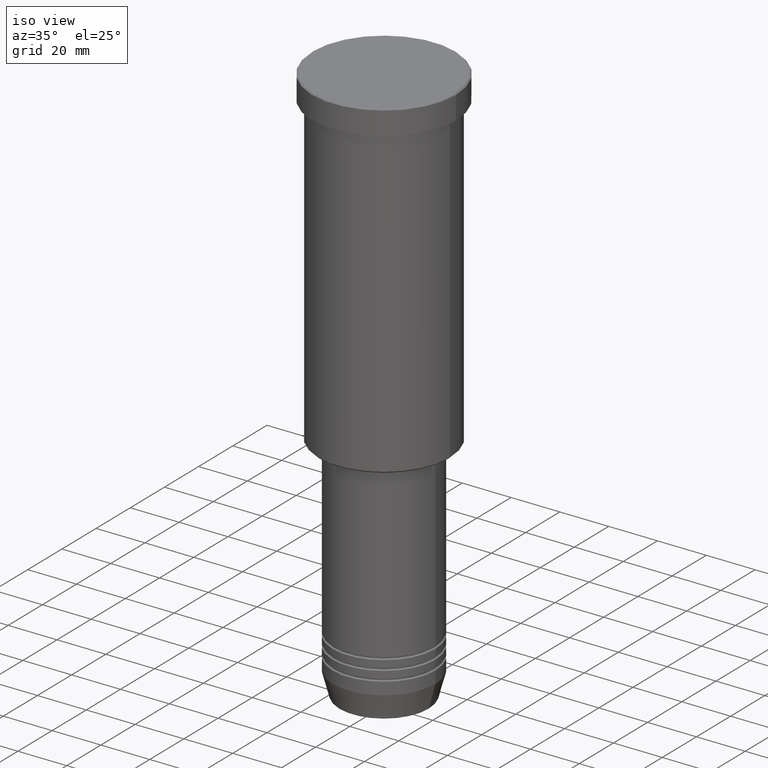
[diagram: clean part render]
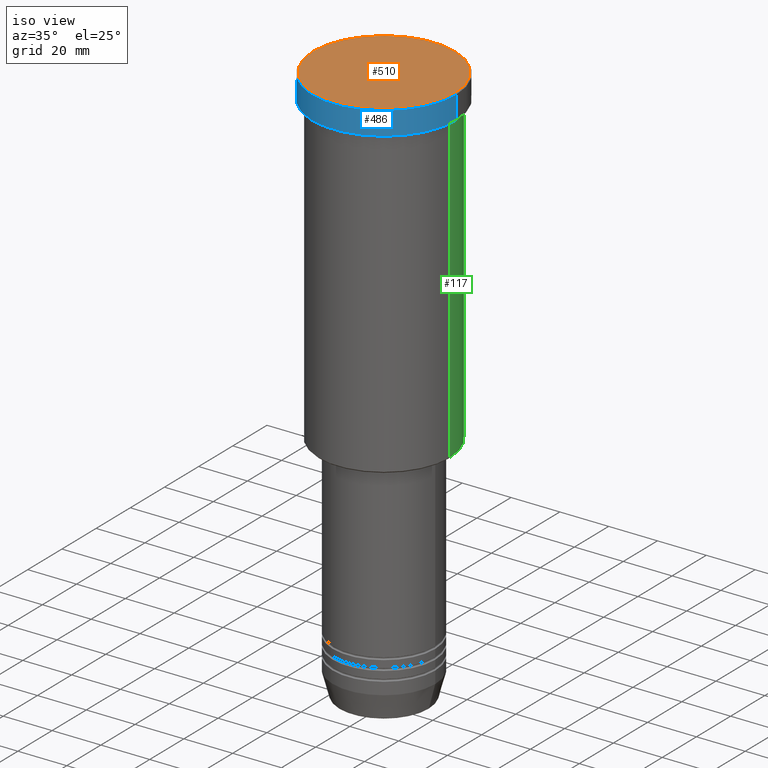
[diagram: same view with three faces highlighted in distinct colors, each labeled with its STEP entity id]
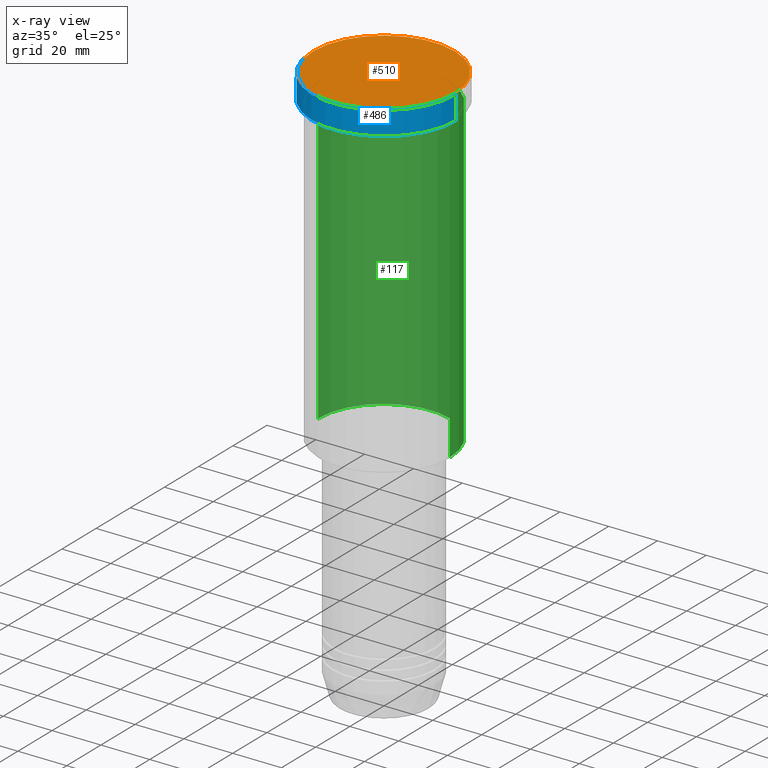
[diagram: x-ray of the same camera — body ghosted, the three highlighted faces saturated]
A machine part, iso view with three faces highlighted in distinct colors.
The next image is the same camera in x-ray (body ghosted, the three faces saturated) — at least one of them is partly hidden behind the body in this view.
Their STEP definitions:

[orange] entity #510 — the highlighted planar face has unit normal (0, -0, 1).
#12 = VERTEX_POINT ( 'NONE', #729 ) ;
#52 = DIRECTION ( 'NONE',  ( 1.000000000000000000, 0.000000000000000000, 0.000000000000000000 ) ) ;
#199 = CARTESIAN_POINT ( 'NONE',  ( 0.000000000000000000, 0.000000000000000000, 0.000000000000000000 ) ) ;
#239 = AXIS2_PLACEMENT_3D ( 'NONE', #199, #384, #1092 ) ;
#245 = ORIENTED_EDGE ( 'NONE', *, *, #462, .T. ) ;
#384 = DIRECTION ( 'NONE',  ( -0.000000000000000000, -0.000000000000000000, 1.000000000000000000 ) ) ;
#394 = EDGE_CURVE ( 'NONE', #12, #621, #571, .T. ) ;
#399 = CARTESIAN_POINT ( 'NONE',  ( 0.000000000000000000, 0.000000000000000000, 0.000000000000000000 ) ) ;
#462 = EDGE_CURVE ( 'NONE', #621, #12, #1034, .T. ) ;
#481 = FACE_OUTER_BOUND ( 'NONE', #1108, .T. ) ;
#500 = DIRECTION ( 'NONE',  ( 0.000000000000000000, -0.000000000000000000, 1.000000000000000000 ) ) ;
#506 = AXIS2_PLACEMENT_3D ( 'NONE', #399, #947, #586 ) ;
#510 = ADVANCED_FACE ( 'NONE', ( #481 ), #595, .T. ) ;
#571 = CIRCLE ( 'NONE', #239, 28.99999999999999645 ) ;
#586 = DIRECTION ( 'NONE',  ( 1.000000000000000000, 0.000000000000000000, 0.000000000000000000 ) ) ;
#595 = PLANE ( 'NONE',  #972 ) ;
#598 = CARTESIAN_POINT ( 'NONE',  ( 0.000000000000000000, 0.000000000000000000, 0.000000000000000000 ) ) ;
#621 = VERTEX_POINT ( 'NONE', #1070 ) ;
#729 = CARTESIAN_POINT ( 'NONE',  ( 28.99999999999999645, 3.582091887506007817E-15, 0.000000000000000000 ) ) ;
#782 = ORIENTED_EDGE ( 'NONE', *, *, #394, .T. ) ;
#947 = DIRECTION ( 'NONE',  ( -0.000000000000000000, -0.000000000000000000, 1.000000000000000000 ) ) ;
#972 = AXIS2_PLACEMENT_3D ( 'NONE', #598, #500, #52 ) ;
#1034 = CIRCLE ( 'NONE', #506, 28.99999999999999645 ) ;
#1070 = CARTESIAN_POINT ( 'NONE',  ( -28.99999999999999645, 0.000000000000000000, 0.000000000000000000 ) ) ;
#1092 = DIRECTION ( 'NONE',  ( 1.000000000000000000, 0.000000000000000000, 0.000000000000000000 ) ) ;
#1108 = EDGE_LOOP ( 'NONE', ( #245, #782 ) ) ;

[blue] entity #486 — the highlighted cylindrical surface (partial cylindrical patch) has radius 29.5 mm, axis along (-0, -0, 1).
#14 = CARTESIAN_POINT ( 'NONE',  ( 29.50000000000000000, 0.000000000000000000, -9.999999999999992895 ) ) ;
#41 = DIRECTION ( 'NONE',  ( 1.000000000000000000, 0.000000000000000000, 0.000000000000000000 ) ) ;
#65 = DIRECTION ( 'NONE',  ( 1.000000000000000000, 0.000000000000000000, 0.000000000000000000 ) ) ;
#79 = EDGE_CURVE ( 'NONE', #426, #949, #854, .T. ) ;
#88 = CIRCLE ( 'NONE', #989, 29.50000000000000000 ) ;
#121 = CYLINDRICAL_SURFACE ( 'NONE', #300, 29.50000000000000000 ) ;
#129 = CARTESIAN_POINT ( 'NONE',  ( 29.50000000000000000, 0.000000000000000000, 0.000000000000000000 ) ) ;
#156 = ORIENTED_EDGE ( 'NONE', *, *, #900, .T. ) ;
#176 = EDGE_LOOP ( 'NONE', ( #787, #994, #156, #256 ) ) ;
#208 = VECTOR ( 'NONE', #1129, 1000.000000000000000 ) ;
#238 = VECTOR ( 'NONE', #262, 1000.000000000000000 ) ;
#256 = ORIENTED_EDGE ( 'NONE', *, *, #1134, .T. ) ;
#262 = DIRECTION ( 'NONE',  ( -0.000000000000000000, -0.000000000000000000, 1.000000000000000000 ) ) ;
#291 = DIRECTION ( 'NONE',  ( 0.000000000000000000, 0.000000000000000000, -1.000000000000000000 ) ) ;
#300 = AXIS2_PLACEMENT_3D ( 'NONE', #590, #310, #1148 ) ;
#310 = DIRECTION ( 'NONE',  ( -0.000000000000000000, -0.000000000000000000, 1.000000000000000000 ) ) ;
#313 = FACE_OUTER_BOUND ( 'NONE', #176, .T. ) ;
#316 = VERTEX_POINT ( 'NONE', #443 ) ;
#364 = CARTESIAN_POINT ( 'NONE',  ( -29.50000000000000000, 3.612708057484691604E-15, -0.5000000000000004441 ) ) ;
#426 = VERTEX_POINT ( 'NONE', #1019 ) ;
#443 = CARTESIAN_POINT ( 'NONE',  ( 29.50000000000000000, 0.000000000000000000, -0.5000000000000004441 ) ) ;
#486 = ADVANCED_FACE ( 'NONE', ( #313 ), #121, .T. ) ;
#527 = CARTESIAN_POINT ( 'NONE',  ( 0.000000000000000000, 0.000000000000000000, -9.999999999999992895 ) ) ;
#558 = EDGE_CURVE ( 'NONE', #426, #837, #88, .T. ) ;
#590 = CARTESIAN_POINT ( 'NONE',  ( 0.000000000000000000, 0.000000000000000000, 0.000000000000000000 ) ) ;
#606 = CIRCLE ( 'NONE', #701, 29.50000000000000000 ) ;
#701 = AXIS2_PLACEMENT_3D ( 'NONE', #1133, #291, #41 ) ;
#787 = ORIENTED_EDGE ( 'NONE', *, *, #79, .F. ) ;
#837 = VERTEX_POINT ( 'NONE', #14 ) ;
#854 = LINE ( 'NONE', #1081, #238 ) ;
#882 = DIRECTION ( 'NONE',  ( -0.000000000000000000, -0.000000000000000000, 1.000000000000000000 ) ) ;
#900 = EDGE_CURVE ( 'NONE', #837, #316, #1036, .T. ) ;
#949 = VERTEX_POINT ( 'NONE', #364 ) ;
#989 = AXIS2_PLACEMENT_3D ( 'NONE', #527, #882, #65 ) ;
#994 = ORIENTED_EDGE ( 'NONE', *, *, #558, .T. ) ;
#1019 = CARTESIAN_POINT ( 'NONE',  ( -29.50000000000000000, 3.612708057484691604E-15, -9.999999999999992895 ) ) ;
#1036 = LINE ( 'NONE', #129, #208 ) ;
#1081 = CARTESIAN_POINT ( 'NONE',  ( -29.50000000000000000, 3.612708057484691604E-15, 0.000000000000000000 ) ) ;
#1129 = DIRECTION ( 'NONE',  ( -0.000000000000000000, -0.000000000000000000, 1.000000000000000000 ) ) ;
#1133 = CARTESIAN_POINT ( 'NONE',  ( 0.000000000000000000, 0.000000000000000000, -0.5000000000000004441 ) ) ;
#1134 = EDGE_CURVE ( 'NONE', #316, #949, #606, .T. ) ;
#1148 = DIRECTION ( 'NONE',  ( 1.000000000000000000, 0.000000000000000000, 0.000000000000000000 ) ) ;

[green] entity #117 — the highlighted cylindrical surface (partial cylindrical patch) has radius 27 mm, axis along (-0, -0, 1).
#21 = EDGE_LOOP ( 'NONE', ( #363, #101, #561, #195 ) ) ;
#58 = DIRECTION ( 'NONE',  ( -0.000000000000000000, -0.000000000000000000, 1.000000000000000000 ) ) ;
#101 = ORIENTED_EDGE ( 'NONE', *, *, #405, .T. ) ;
#117 = ADVANCED_FACE ( 'NONE', ( #288 ), #383, .T. ) ;
#144 = VERTEX_POINT ( 'NONE', #541 ) ;
#154 = EDGE_CURVE ( 'NONE', #144, #269, #349, .T. ) ;
#155 = CARTESIAN_POINT ( 'NONE',  ( 27.00000000000000355, 0.000000000000000000, 0.000000000000000000 ) ) ;
#195 = ORIENTED_EDGE ( 'NONE', *, *, #241, .F. ) ;
#203 = CARTESIAN_POINT ( 'NONE',  ( 0.000000000000000000, 0.000000000000000000, -135.5000000000000568 ) ) ;
#212 = DIRECTION ( 'NONE',  ( -0.000000000000000000, -0.000000000000000000, 1.000000000000000000 ) ) ;
#241 = EDGE_CURVE ( 'NONE', #671, #144, #1151, .T. ) ;
#258 = VECTOR ( 'NONE', #58, 1000.000000000000000 ) ;
#267 = CARTESIAN_POINT ( 'NONE',  ( 0.000000000000000000, 0.000000000000000000, 0.000000000000000000 ) ) ;
#269 = VERTEX_POINT ( 'NONE', #610 ) ;
#288 = FACE_OUTER_BOUND ( 'NONE', #21, .T. ) ;
#349 = CIRCLE ( 'NONE', #1063, 27.00000000000000355 ) ;
#363 = ORIENTED_EDGE ( 'NONE', *, *, #883, .T. ) ;
#383 = CYLINDRICAL_SURFACE ( 'NONE', #492, 27.00000000000000355 ) ;
#405 = EDGE_CURVE ( 'NONE', #1011, #269, #933, .T. ) ;
#492 = AXIS2_PLACEMENT_3D ( 'NONE', #267, #910, #1103 ) ;
#541 = CARTESIAN_POINT ( 'NONE',  ( 27.00000000000000355, 0.000000000000000000, -10.99999999999999289 ) ) ;
#561 = ORIENTED_EDGE ( 'NONE', *, *, #154, .F. ) ;
#610 = CARTESIAN_POINT ( 'NONE',  ( -27.00000000000000355, 3.306546357697854128E-15, -10.99999999999999289 ) ) ;
#613 = CARTESIAN_POINT ( 'NONE',  ( 27.00000000000000355, 0.000000000000000000, -135.5000000000000568 ) ) ;
#671 = VERTEX_POINT ( 'NONE', #613 ) ;
#722 = CARTESIAN_POINT ( 'NONE',  ( 0.000000000000000000, 0.000000000000000000, -10.99999999999999289 ) ) ;
#823 = CARTESIAN_POINT ( 'NONE',  ( -27.00000000000000355, 3.306546357697854128E-15, 0.000000000000000000 ) ) ;
#833 = DIRECTION ( 'NONE',  ( -0.000000000000000000, -0.000000000000000000, 1.000000000000000000 ) ) ;
#840 = AXIS2_PLACEMENT_3D ( 'NONE', #203, #212, #951 ) ;
#873 = VECTOR ( 'NONE', #1010, 1000.000000000000000 ) ;
#883 = EDGE_CURVE ( 'NONE', #671, #1011, #916, .T. ) ;
#899 = CARTESIAN_POINT ( 'NONE',  ( -27.00000000000000355, 3.306546357697854128E-15, -135.5000000000000568 ) ) ;
#902 = DIRECTION ( 'NONE',  ( 1.000000000000000000, 0.000000000000000000, 0.000000000000000000 ) ) ;
#910 = DIRECTION ( 'NONE',  ( -0.000000000000000000, -0.000000000000000000, 1.000000000000000000 ) ) ;
#916 = CIRCLE ( 'NONE', #840, 27.00000000000000355 ) ;
#933 = LINE ( 'NONE', #823, #873 ) ;
#951 = DIRECTION ( 'NONE',  ( -1.000000000000000000, 0.000000000000000000, 0.000000000000000000 ) ) ;
#1010 = DIRECTION ( 'NONE',  ( -0.000000000000000000, -0.000000000000000000, 1.000000000000000000 ) ) ;
#1011 = VERTEX_POINT ( 'NONE', #899 ) ;
#1063 = AXIS2_PLACEMENT_3D ( 'NONE', #722, #833, #902 ) ;
#1103 = DIRECTION ( 'NONE',  ( 1.000000000000000000, 0.000000000000000000, 0.000000000000000000 ) ) ;
#1151 = LINE ( 'NONE', #155, #258 ) ;